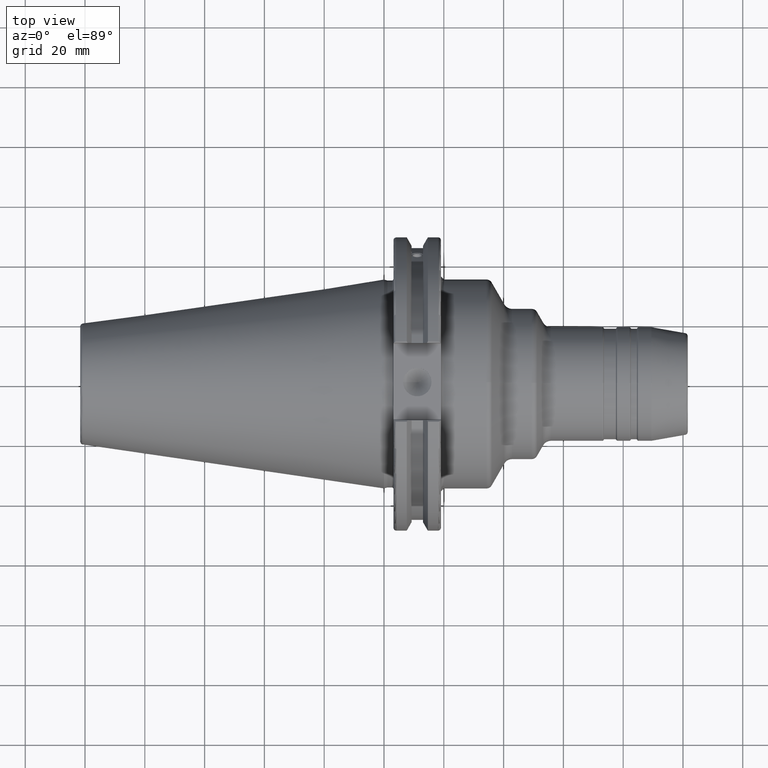
[diagram: clean part render]
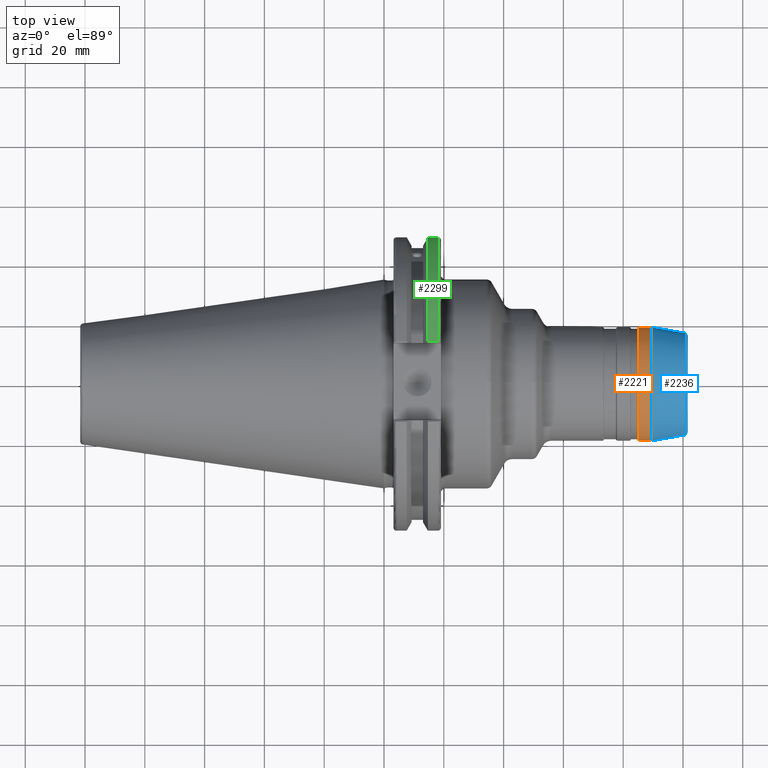
[diagram: same view with three faces highlighted in distinct colors, each labeled with its STEP entity id]
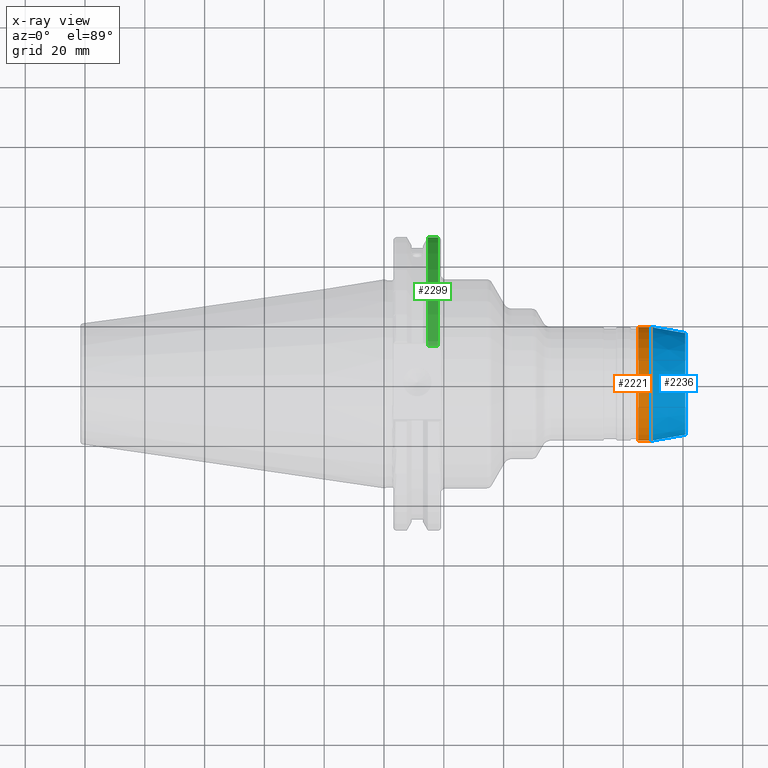
[diagram: x-ray of the same camera — body ghosted, the three highlighted faces saturated]
A machine part, top view with three faces highlighted in distinct colors.
The next image is the same camera in x-ray (body ghosted, the three faces saturated) — at least one of them is partly hidden behind the body in this view.
Their STEP definitions:

[orange] entity #2221 — the highlighted cylindrical surface (bore or boss wall) has radius 19 mm, axis along (1, 0, 0).
#186=FACE_OUTER_BOUND('',#300,.T.);
#300=EDGE_LOOP('',(#1566,#1567,#1568,#1569,#1570,#1571,#1572,#1573));
#424=LINE('',#3592,#531);
#531=VECTOR('',#2807,19.);
#677=CIRCLE('',#2403,19.);
#678=CIRCLE('',#2404,19.);
#680=CIRCLE('',#2406,19.);
#681=CIRCLE('',#2408,19.);
#682=CIRCLE('',#2409,19.);
#683=CIRCLE('',#2410,19.);
#874=VERTEX_POINT('',#3579);
#875=VERTEX_POINT('',#3580);
#876=VERTEX_POINT('',#3582);
#877=VERTEX_POINT('',#3587);
#878=VERTEX_POINT('',#3588);
#879=VERTEX_POINT('',#3590);
#1150=EDGE_CURVE('',#874,#875,#677,.T.);
#1151=EDGE_CURVE('',#875,#876,#678,.T.);
#1153=EDGE_CURVE('',#876,#874,#680,.T.);
#1154=EDGE_CURVE('',#877,#878,#681,.T.);
#1155=EDGE_CURVE('',#879,#877,#682,.T.);
#1156=EDGE_CURVE('',#879,#875,#424,.T.);
#1157=EDGE_CURVE('',#878,#879,#683,.T.);
#1566=ORIENTED_EDGE('',*,*,#1154,.F.);
#1567=ORIENTED_EDGE('',*,*,#1155,.F.);
#1568=ORIENTED_EDGE('',*,*,#1156,.T.);
#1569=ORIENTED_EDGE('',*,*,#1150,.F.);
#1570=ORIENTED_EDGE('',*,*,#1153,.F.);
#1571=ORIENTED_EDGE('',*,*,#1151,.F.);
#1572=ORIENTED_EDGE('',*,*,#1156,.F.);
#1573=ORIENTED_EDGE('',*,*,#1157,.F.);
#2176=CYLINDRICAL_SURFACE('',#2407,19.);
#2221=ADVANCED_FACE('',(#186),#2176,.T.);
#2403=AXIS2_PLACEMENT_3D('',#3581,#2793,#2794);
#2404=AXIS2_PLACEMENT_3D('',#3583,#2795,#2796);
#2406=AXIS2_PLACEMENT_3D('',#3585,#2799,#2800);
#2407=AXIS2_PLACEMENT_3D('',#3586,#2801,#2802);
#2408=AXIS2_PLACEMENT_3D('',#3589,#2803,#2804);
#2409=AXIS2_PLACEMENT_3D('',#3591,#2805,#2806);
#2410=AXIS2_PLACEMENT_3D('',#3593,#2808,#2809);
#2793=DIRECTION('center_axis',(-1.,0.,0.));
#2794=DIRECTION('ref_axis',(0.,-1.,1.83697019872103E-16));
#2795=DIRECTION('center_axis',(-1.,0.,0.));
#2796=DIRECTION('ref_axis',(0.,-1.,1.83697019872103E-16));
#2799=DIRECTION('center_axis',(-1.,0.,0.));
#2800=DIRECTION('ref_axis',(0.,-1.,1.83697019872103E-16));
#2801=DIRECTION('center_axis',(1.,0.,0.));
#2802=DIRECTION('ref_axis',(0.,1.,0.));
#2803=DIRECTION('center_axis',(1.,0.,0.));
#2804=DIRECTION('ref_axis',(0.,-1.,1.83697019872103E-16));
#2805=DIRECTION('center_axis',(1.,0.,0.));
#2806=DIRECTION('ref_axis',(0.,-1.,1.83697019872103E-16));
#2807=DIRECTION('',(-1.,0.,0.));
#2808=DIRECTION('center_axis',(1.,0.,0.));
#2809=DIRECTION('ref_axis',(0.,-1.,1.83697019872103E-16));
#3579=CARTESIAN_POINT('',(85.1196152422707,19.,-5.81707229594993E-15));
#3580=CARTESIAN_POINT('',(85.1196152422707,-19.,-2.32682891837997E-15));
#3581=CARTESIAN_POINT('Origin',(85.1196152422707,0.,0.));
#3582=CARTESIAN_POINT('',(85.1196152422707,-2.32682891837997E-15,19.));
#3583=CARTESIAN_POINT('Origin',(85.1196152422707,0.,0.));
#3585=CARTESIAN_POINT('Origin',(85.1196152422707,0.,0.));
#3586=CARTESIAN_POINT('Origin',(87.1477096112084,0.,0.));
#3587=CARTESIAN_POINT('',(89.319255424296,19.,-1.16341445918999E-15));
#3588=CARTESIAN_POINT('',(89.319255424296,-2.32682891837997E-15,19.));
#3589=CARTESIAN_POINT('Origin',(89.319255424296,0.,0.));
#3590=CARTESIAN_POINT('',(89.319255424296,-19.,-2.32682891837997E-15));
#3591=CARTESIAN_POINT('Origin',(89.319255424296,0.,0.));
#3592=CARTESIAN_POINT('',(87.1477096112084,-19.,-2.32682891837997E-15));
#3593=CARTESIAN_POINT('Origin',(89.319255424296,0.,0.));

[blue] entity #2236 — the highlighted conical surface has half-angle 10 deg.
#158=CONICAL_SURFACE('',#2472,17.925,0.174532925199432);
#201=FACE_OUTER_BOUND('',#315,.T.);
#315=EDGE_LOOP('',(#1686,#1687,#1688,#1689,#1690,#1691,#1692,#1693));
#431=LINE('',#3706,#538);
#538=VECTOR('',#2944,17.925);
#727=CIRCLE('',#2468,18.9848077530122);
#728=CIRCLE('',#2469,18.9848077530122);
#730=CIRCLE('',#2471,18.9848077530122);
#731=CIRCLE('',#2473,16.9957081218349);
#732=CIRCLE('',#2474,16.9957081218349);
#733=CIRCLE('',#2475,16.9957081218349);
#916=VERTEX_POINT('',#3693);
#917=VERTEX_POINT('',#3694);
#918=VERTEX_POINT('',#3696);
#919=VERTEX_POINT('',#3701);
#920=VERTEX_POINT('',#3702);
#921=VERTEX_POINT('',#3704);
#1207=EDGE_CURVE('',#916,#917,#727,.T.);
#1208=EDGE_CURVE('',#917,#918,#728,.T.);
#1210=EDGE_CURVE('',#918,#916,#730,.T.);
#1211=EDGE_CURVE('',#919,#920,#731,.T.);
#1212=EDGE_CURVE('',#921,#919,#732,.T.);
#1213=EDGE_CURVE('',#921,#917,#431,.T.);
#1214=EDGE_CURVE('',#920,#921,#733,.T.);
#1686=ORIENTED_EDGE('',*,*,#1211,.F.);
#1687=ORIENTED_EDGE('',*,*,#1212,.F.);
#1688=ORIENTED_EDGE('',*,*,#1213,.T.);
#1689=ORIENTED_EDGE('',*,*,#1207,.F.);
#1690=ORIENTED_EDGE('',*,*,#1210,.F.);
#1691=ORIENTED_EDGE('',*,*,#1208,.F.);
#1692=ORIENTED_EDGE('',*,*,#1213,.F.);
#1693=ORIENTED_EDGE('',*,*,#1214,.F.);
#2236=ADVANCED_FACE('',(#201),#158,.T.);
#2468=AXIS2_PLACEMENT_3D('',#3695,#2930,#2931);
#2469=AXIS2_PLACEMENT_3D('',#3697,#2932,#2933);
#2471=AXIS2_PLACEMENT_3D('',#3699,#2936,#2937);
#2472=AXIS2_PLACEMENT_3D('',#3700,#2938,#2939);
#2473=AXIS2_PLACEMENT_3D('',#3703,#2940,#2941);
#2474=AXIS2_PLACEMENT_3D('',#3705,#2942,#2943);
#2475=AXIS2_PLACEMENT_3D('',#3707,#2945,#2946);
#2930=DIRECTION('center_axis',(-1.,0.,0.));
#2931=DIRECTION('ref_axis',(0.,-1.,3.06161699786838E-17));
#2932=DIRECTION('center_axis',(-1.,0.,0.));
#2933=DIRECTION('ref_axis',(0.,-1.,3.06161699786838E-17));
#2936=DIRECTION('center_axis',(-1.,0.,0.));
#2937=DIRECTION('ref_axis',(0.,-1.,3.06161699786838E-17));
#2938=DIRECTION('center_axis',(-1.,0.,0.));
#2939=DIRECTION('ref_axis',(0.,1.,0.));
#2940=DIRECTION('center_axis',(1.,0.,0.));
#2941=DIRECTION('ref_axis',(0.,-1.,3.06161699786838E-17));
#2942=DIRECTION('center_axis',(1.,0.,0.));
#2943=DIRECTION('ref_axis',(0.,-1.,3.06161699786838E-17));
#2944=DIRECTION('',(-0.984807753012208,-0.17364817766693,-2.12657684957577E-17));
#2945=DIRECTION('center_axis',(1.,0.,0.));
#2946=DIRECTION('ref_axis',(0.,-1.,3.06161699786838E-17));
#3693=CARTESIAN_POINT('',(89.4929036019629,18.9848077530122,-5.81242101178856E-15));
#3694=CARTESIAN_POINT('',(89.4929036019629,-18.9848077530122,-2.32496840471543E-15));
#3695=CARTESIAN_POINT('Origin',(89.4929036019629,0.,-2.90621050589428E-15));
#3696=CARTESIAN_POINT('',(89.4929036019629,-2.32496840471542E-15,18.9848077530122));
#3697=CARTESIAN_POINT('Origin',(89.4929036019629,0.,-2.90621050589428E-15));
#3699=CARTESIAN_POINT('Origin',(89.4929036019629,0.,-2.90621050589428E-15));
#3700=CARTESIAN_POINT('Origin',(95.503372043911,0.,0.));
#3701=CARTESIAN_POINT('',(100.773648177667,16.9957081218349,-1.04068697753239E-15));
#3702=CARTESIAN_POINT('',(100.773648177667,-2.08137395506478E-15,16.9957081218349));
#3703=CARTESIAN_POINT('Origin',(100.773648177667,0.,-2.60171744383098E-15));
#3704=CARTESIAN_POINT('',(100.773648177667,-16.9957081218349,-2.08137395506478E-15));
#3705=CARTESIAN_POINT('Origin',(100.773648177667,0.,-2.60171744383098E-15));
#3706=CARTESIAN_POINT('',(95.503372043911,-17.925,-2.19517938747163E-15));
#3707=CARTESIAN_POINT('Origin',(100.773648177667,0.,-2.60171744383098E-15));

[green] entity #2299 — the highlighted cylindrical surface (partial cylindrical patch) has radius 49.2125 mm, axis along (1, 0, 0).
#264=FACE_OUTER_BOUND('',#393,.T.);
#393=EDGE_LOOP('',(#2081,#2082,#2083,#2084));
#474=LINE('',#4322,#581);
#513=LINE('',#4545,#620);
#581=VECTOR('',#3189,10.);
#620=VECTOR('',#3306,10.);
#793=CIRCLE('',#2574,49.2125);
#809=CIRCLE('',#2616,49.2125);
#1029=VERTEX_POINT('',#4296);
#1030=VERTEX_POINT('',#4305);
#1032=VERTEX_POINT('',#4318);
#1075=VERTEX_POINT('',#4544);
#1348=EDGE_CURVE('',#1029,#1030,#793,.T.);
#1352=EDGE_CURVE('',#1032,#1029,#474,.T.);
#1424=EDGE_CURVE('',#1030,#1075,#513,.T.);
#1426=EDGE_CURVE('',#1032,#1075,#809,.T.);
#2081=ORIENTED_EDGE('',*,*,#1348,.F.);
#2082=ORIENTED_EDGE('',*,*,#1352,.F.);
#2083=ORIENTED_EDGE('',*,*,#1426,.T.);
#2084=ORIENTED_EDGE('',*,*,#1424,.F.);
#2199=CYLINDRICAL_SURFACE('',#2615,49.2125);
#2299=ADVANCED_FACE('',(#264),#2199,.T.);
#2574=AXIS2_PLACEMENT_3D('',#4306,#3184,#3185);
#2615=AXIS2_PLACEMENT_3D('',#4549,#3307,#3308);
#2616=AXIS2_PLACEMENT_3D('',#4550,#3309,#3310);
#3184=DIRECTION('center_axis',(1.,0.,0.));
#3185=DIRECTION('ref_axis',(0.,1.,-6.12323399573677E-17));
#3189=DIRECTION('',(1.,0.,0.));
#3306=DIRECTION('',(-1.,0.,0.));
#3307=DIRECTION('center_axis',(1.,0.,0.));
#3308=DIRECTION('ref_axis',(0.,1.,0.));
#3309=DIRECTION('center_axis',(1.,0.,0.));
#3310=DIRECTION('ref_axis',(0.,0.,-1.));
#4296=CARTESIAN_POINT('',(18.05,13.4317035994433,-47.3440544806494));
#4305=CARTESIAN_POINT('',(18.05,13.4317035994433,47.3440544806494));
#4306=CARTESIAN_POINT('Origin',(18.05,0.,0.));
#4318=CARTESIAN_POINT('',(14.6602090340487,13.4317035994433,-47.3440544806494));
#4322=CARTESIAN_POINT('',(16.8551045170244,13.4317035994433,-47.3440544806494));
#4544=CARTESIAN_POINT('',(14.6602090340487,13.4317035994433,47.3440544806494));
#4545=CARTESIAN_POINT('',(16.8551045170244,13.4317035994433,47.3440544806494));
#4549=CARTESIAN_POINT('Origin',(16.8551045170244,0.,0.));
#4550=CARTESIAN_POINT('Origin',(14.6602090340487,0.,0.));